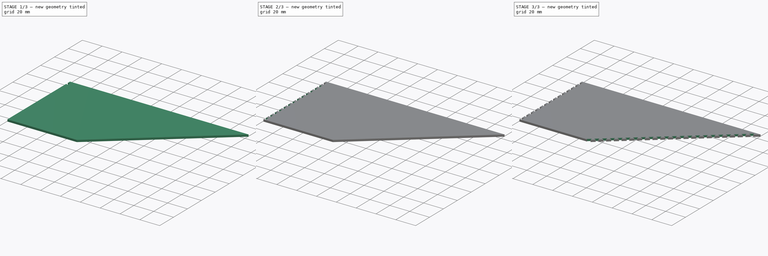
[diagram: build sequence overview — one tinted view per stage of 3, left to right]
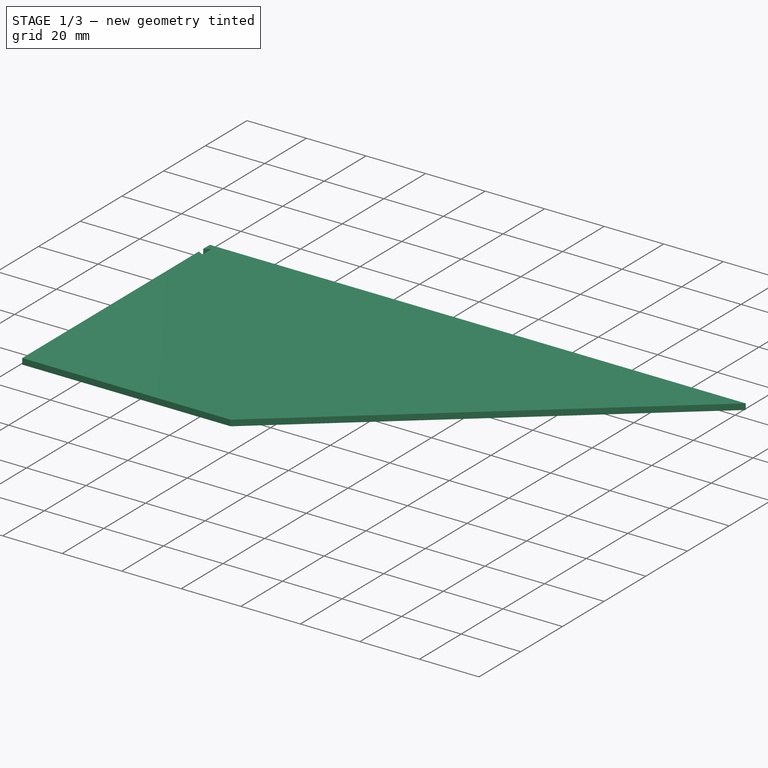
[diagram: stage 1 of 3 — iso view after this stage's code; geometry added in this stage tinted green]
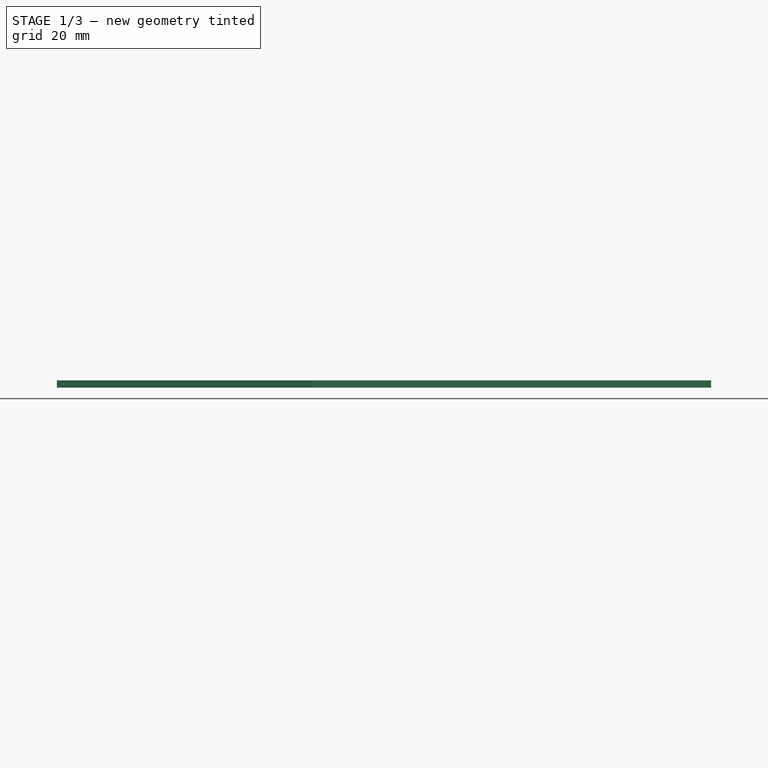
[diagram: stage 1 of 3 — front view after this stage's code; geometry added in this stage tinted green]
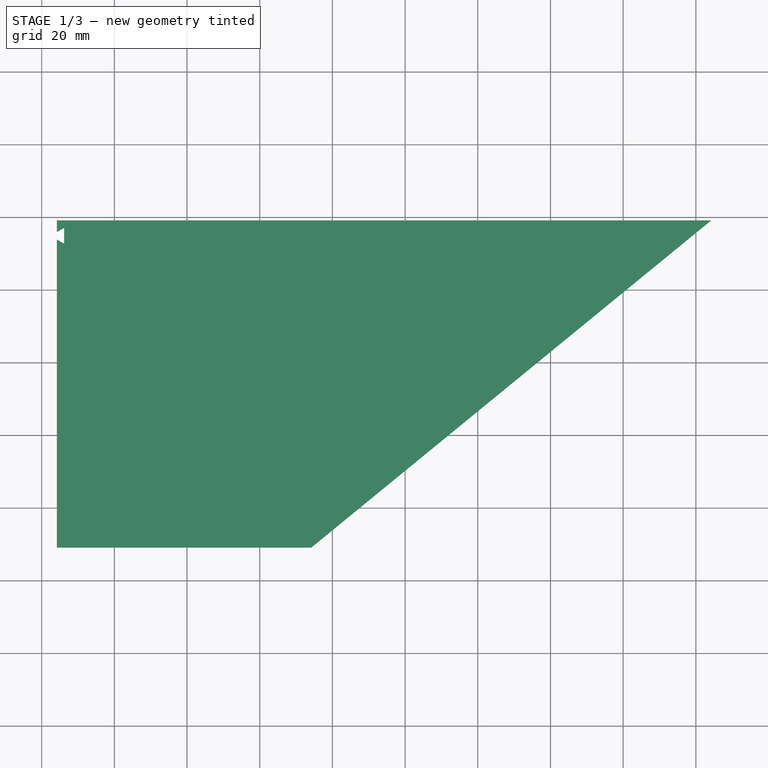
[diagram: stage 1 of 3 — top view after this stage's code; geometry added in this stage tinted green]
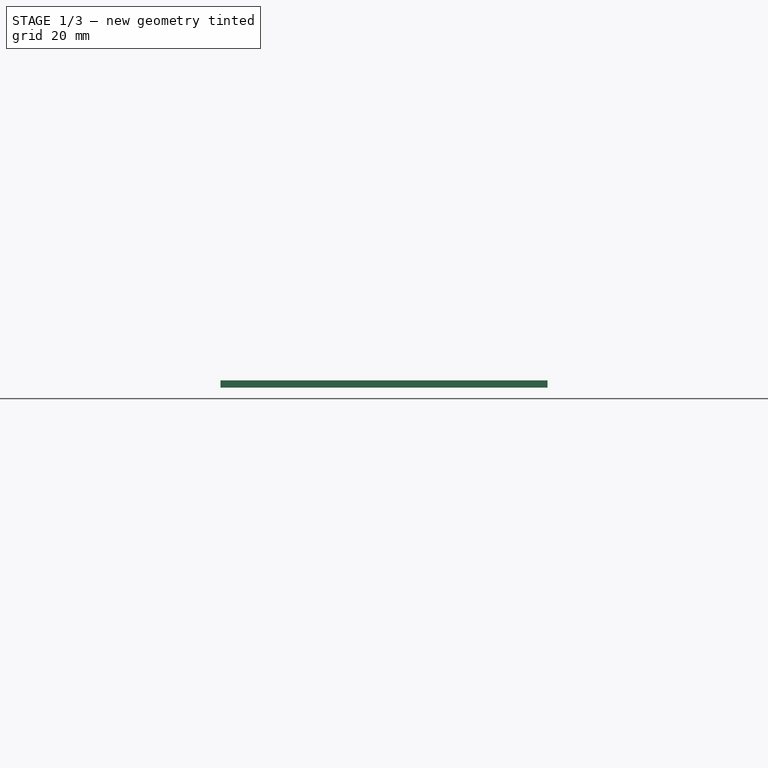
[diagram: stage 1 of 3 — right view after this stage's code; geometry added in this stage tinted green]
FCSTD DOCUMENT  (FreeCAD 0.19R24291 (Git))
Label: bunkerRightSide
License: All rights reserved
LicenseURL: http://en.wikipedia.org/wiki/All_rights_reserved
objects: Sketcher::SketchObject×3, PartDesign::Pocket×2, PartDesign::LinearPattern×2, PartDesign::Pad×1, PartDesign::Body×1
note: 12 computed .brp shape members not serialized (recipe doc carries the construction recipe); baked Part::Feature solids carry a one-line shape summary decoded from their .brp

FEATURE [Sketcher::SketchObject] Sketch
  FullyConstrained = false
  MapMode = 5
  Support = -> [XY_Plane]
  sketch-geometry (4):
    g0: LineSegment StartX=24.195 StartY=29.1082 StartZ=0 EndX=24.195 EndY=119.108 EndZ=0
    g1: LineSegment StartX=24.195 StartY=119.108 StartZ=0 EndX=204.195 EndY=119.108 EndZ=0
    g2: LineSegment StartX=204.195 StartY=119.108 StartZ=0 EndX=94.195 EndY=29.1082 EndZ=0
    g3: LineSegment StartX=94.195 StartY=29.1082 StartZ=0 EndX=24.195 EndY=29.1082 EndZ=0
  constraints (10):
    c: Vertical(g0)
    c: Coincident(g0,g1)
    c: Horizontal(g1)
    c: Coincident(g1,g2)
    c: Coincident(g2,g3)
    c: Coincident(g3,g0)
    c: Horizontal(g3)
    c: Distance(g0) = 90
    c: Distance(g1) = 180
    c: Distance(g3) = 70
FEATURE [PartDesign::Pad] Pad
  Direction = (1,1,1)
  Length = 2
  Length2 = 100
  Profile = -> Sketch
  Type = 0
FEATURE [Sketcher::SketchObject] Sketch001
  ExternalGeometry = -> [Pad]
  FullyConstrained = true
  MapMode = 5
  Placement = pos=(0,0,2) rot=(0,0,1;0rad)
  Support = -> [Pad]
  sketch-geometry (4):
    g0: LineSegment StartX=24.195 StartY=115.954 StartZ=0 EndX=26.195 EndY=117.108 EndZ=0
    g1: LineSegment StartX=26.195 StartY=117.108 StartZ=0 EndX=26.195 EndY=112.699 EndZ=0
    g2: LineSegment StartX=26.195 StartY=112.699 StartZ=0 EndX=24.195 EndY=113.854 EndZ=0
    g3: LineSegment StartX=24.195 StartY=113.854 StartZ=0 EndX=24.195 EndY=115.954 EndZ=0
  constraints (12):
    c: PointOnObject(g0,g-3)
    c: Coincident(g0,g1)
    c: Vertical(g1)
    c: Coincident(g1,g2)
    c: Coincident(g2,g3)
    c: Coincident(g3,g0)
    c: PointOnObject(g2,g-3)
    c: Equal(g2,g0)
    c: Angle(g-3,g2) = 1.0472
    c: Distance(g3) = 2.1
    c: Distance(g2,g1) = 2
    c: DistanceY(g0,g-3) = 2
FEATURE [PartDesign::Pocket] Pocket
  BaseFeature = -> Pad
  Length = 5
  Length2 = 100
  Profile = -> Sketch001
  Type = 0
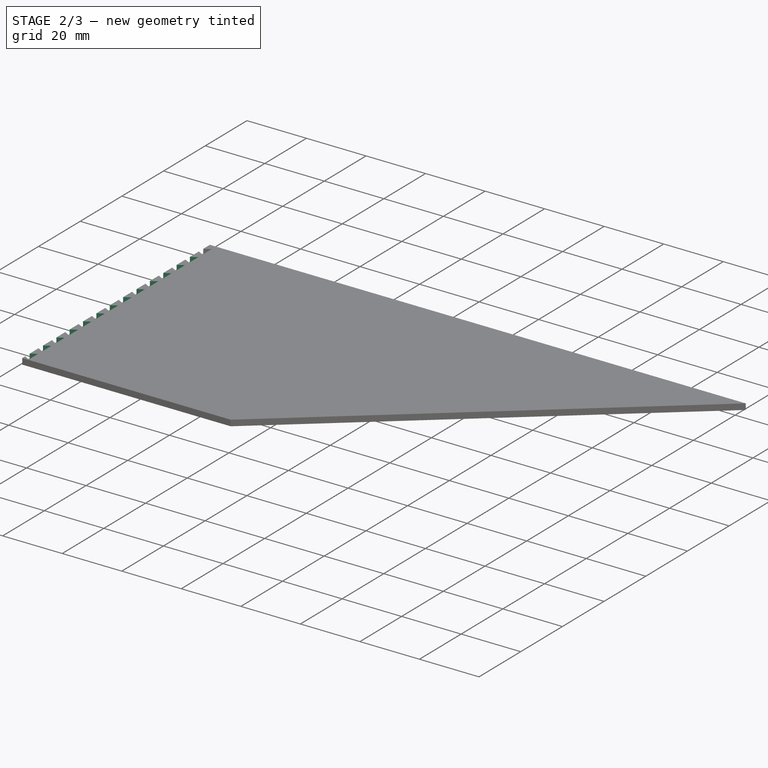
[diagram: stage 2 of 3 — iso view after this stage's code; geometry added in this stage tinted green]
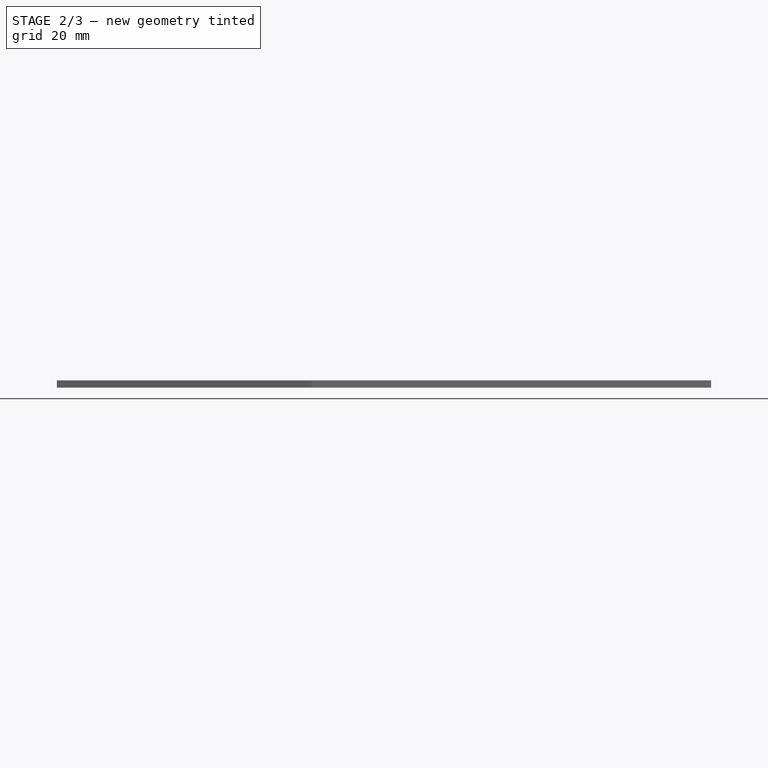
[diagram: stage 2 of 3 — front view after this stage's code; geometry added in this stage tinted green]
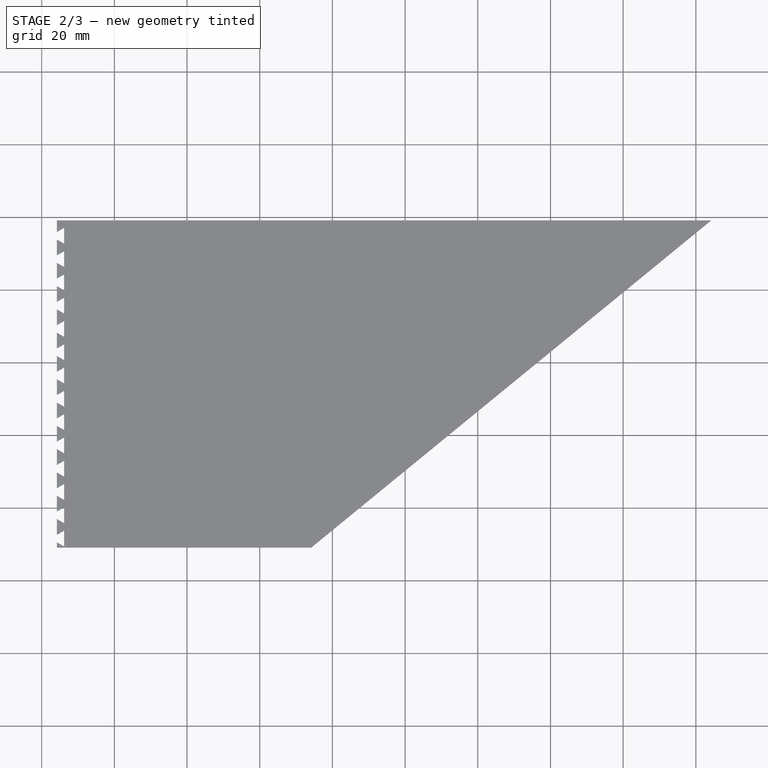
[diagram: stage 2 of 3 — top view after this stage's code; geometry added in this stage tinted green]
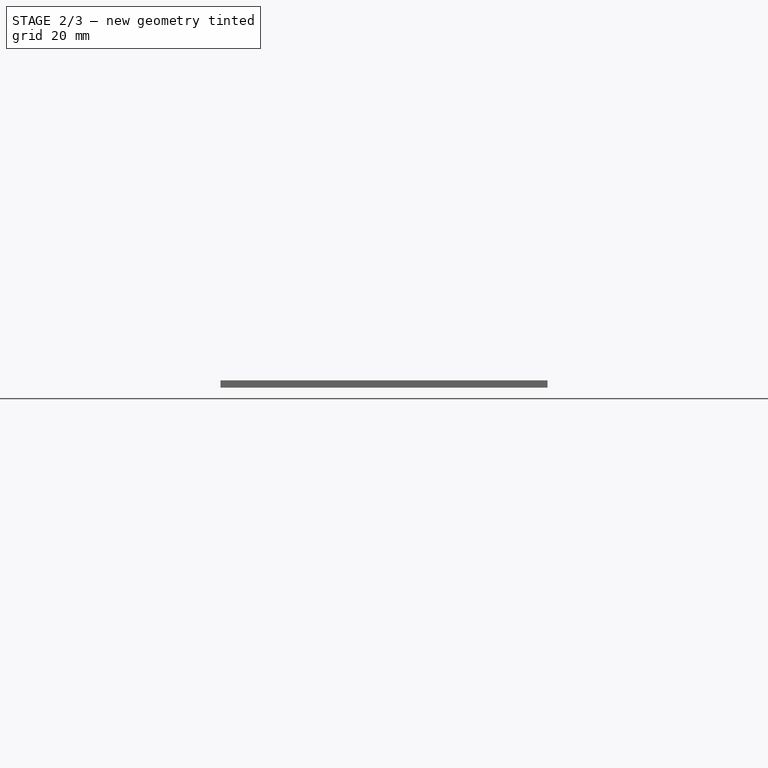
[diagram: stage 2 of 3 — right view after this stage's code; geometry added in this stage tinted green]
FEATURE [PartDesign::LinearPattern] LinearPattern
  BaseFeature = -> Pocket
  Direction = -> Pocket [Edge3]
  Length = 89.7316
  Occurrences = 15
  Originals = -> [Pocket]
  Reversed = true
  expr: Length = <<bunkerLeftSide>>#Spreadsheet.dovetail_length * 14
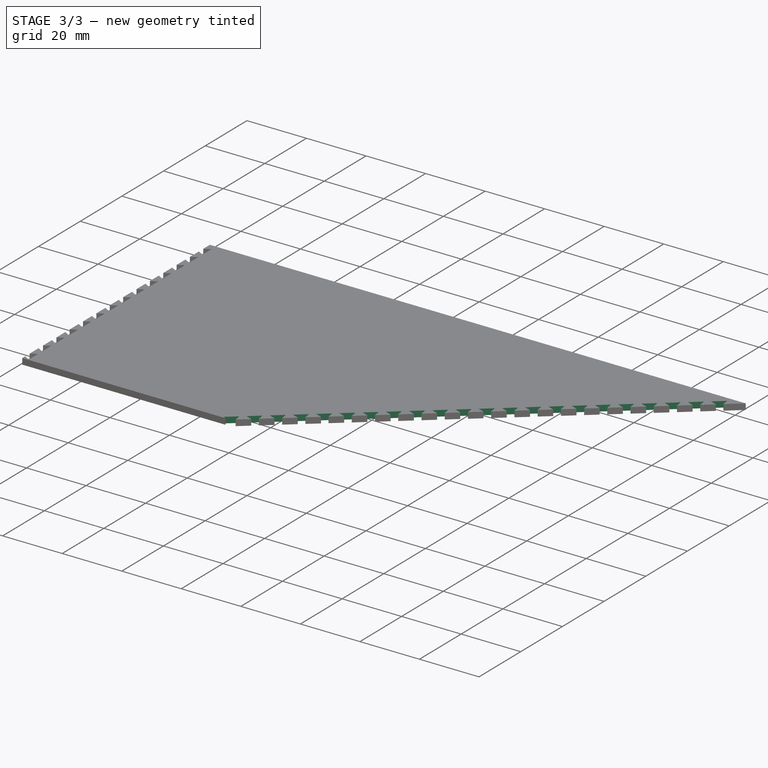
[diagram: stage 3 of 3 — iso view after this stage's code; geometry added in this stage tinted green]
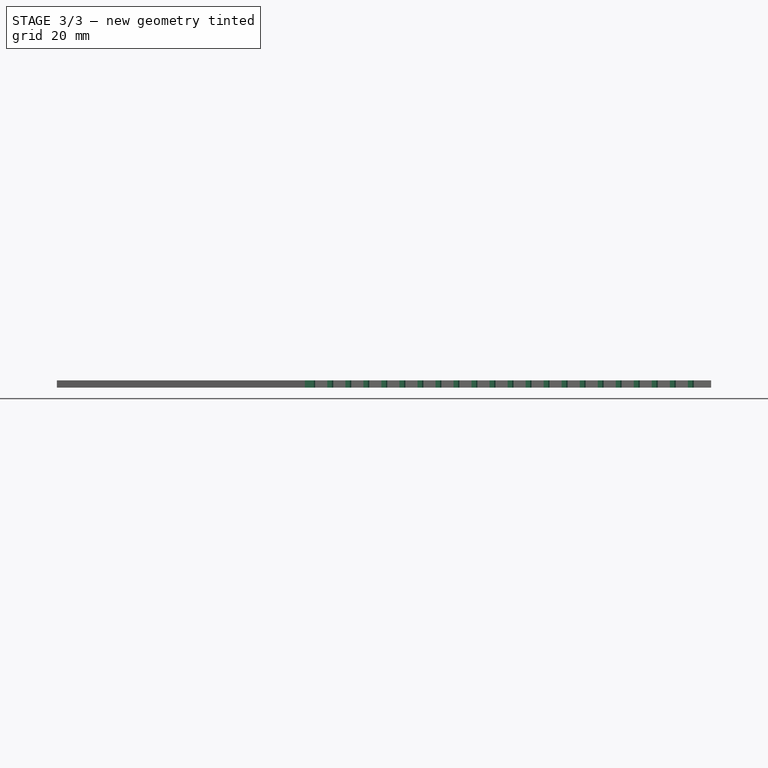
[diagram: stage 3 of 3 — front view after this stage's code; geometry added in this stage tinted green]
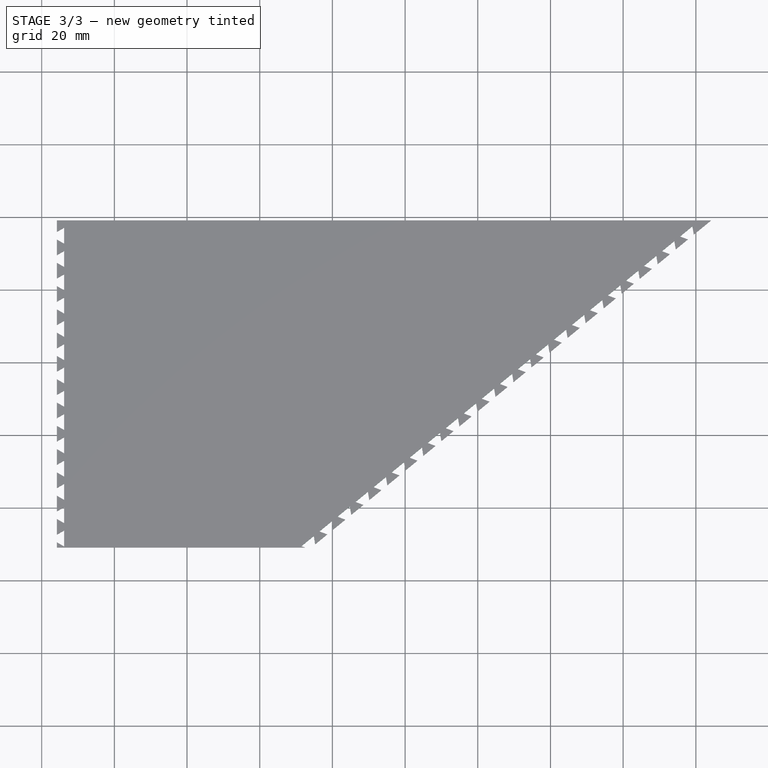
[diagram: stage 3 of 3 — top view after this stage's code; geometry added in this stage tinted green]
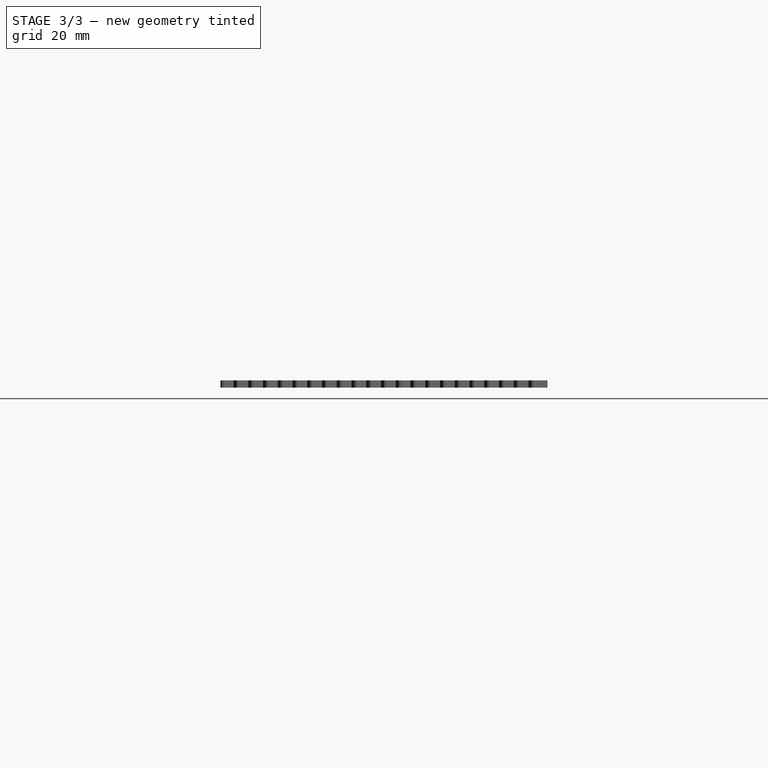
[diagram: stage 3 of 3 — right view after this stage's code; geometry added in this stage tinted green]
FEATURE [Sketcher::SketchObject] Sketch002
  ExternalGeometry = -> [LinearPattern]
  FullyConstrained = false
  MapMode = 5
  Placement = pos=(0,0,2) rot=(0,0,1;0rad)
  Support = -> [LinearPattern]
  sketch-geometry (5):
    g0: LineSegment StartX=199.432 StartY=115.211 StartZ=0 EndX=199.059 EndY=117.49 EndZ=0
    g1: LineSegment StartX=199.059 StartY=117.49 StartZ=0 EndX=195.646 EndY=114.698 EndZ=0
    g2: LineSegment StartX=195.646 StartY=114.698 StartZ=0 EndX=197.806 EndY=113.881 EndZ=0
    g3: LineSegment StartX=197.806 StartY=113.881 StartZ=0 EndX=199.432 EndY=115.211 EndZ=0
    g4: LineSegment StartX=204.195 StartY=119.108 StartZ=0 EndX=201.448 EndY=122.466 EndZ=0
  constraints (14):
    c: PointOnObject(g0,g-3)
    c: Coincident(g0,g1)
    c: Coincident(g1,g2)
    c: PointOnObject(g2,g-3)
    c: Coincident(g2,g3)
    c: Coincident(g3,g0)
    c: Equal(g2,g0)
    c: Parallel(g1,g-3)
    c: Angle(g0,g-3) = 2.0944
    c: Distance(g3) = 2.1
    c: Distance(g2,g1) = 2
    c: Coincident(g4,g-3)
    c: Perpendicular(g-3,g4)
    c: Distance(g0,g4) = 5
FEATURE [PartDesign::Pocket] Pocket001
  BaseFeature = -> LinearPattern
  Length = 5
  Length2 = 100
  Profile = -> Sketch002
  Type = 0
FEATURE [PartDesign::LinearPattern] LinearPattern001
  BaseFeature = -> Pocket001
  Direction = -> Pocket001 [Edge125]
  Length = 134.597
  Occurrences = 22
  Originals = -> [Pocket001]
  expr: Length = <<bunkerLeftSide>>#Spreadsheet.dovetail_length * 21
FEATURE [PartDesign::Body] Body
  Group = -> [Sketch,Pad,Sketch001,Pocket,LinearPattern,Sketch002,Pocket001,LinearPattern001]
  Origin = -> Origin
  Tip = -> LinearPattern001
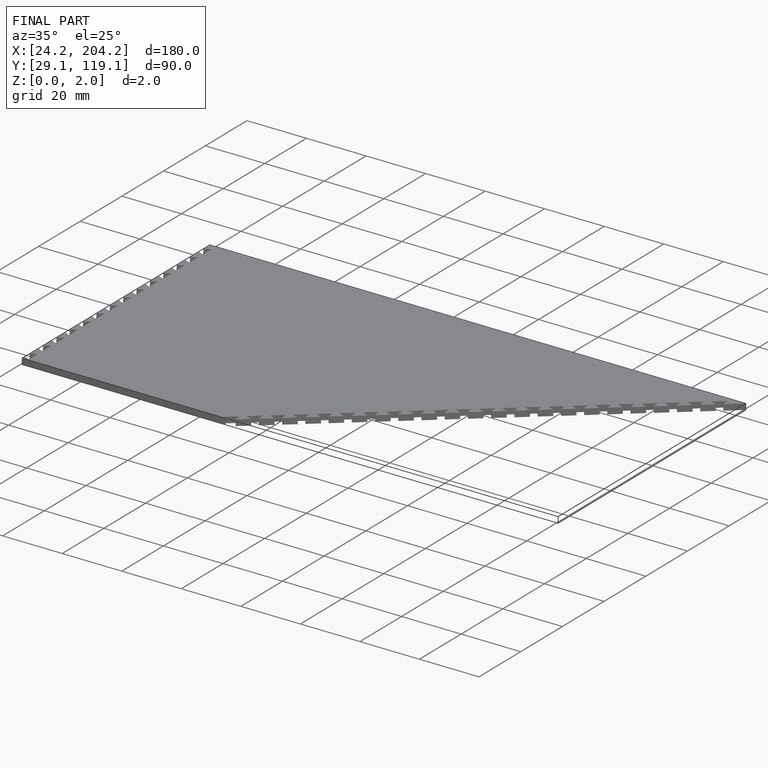
[diagram: finished part — iso view with bounding-box wireframe]
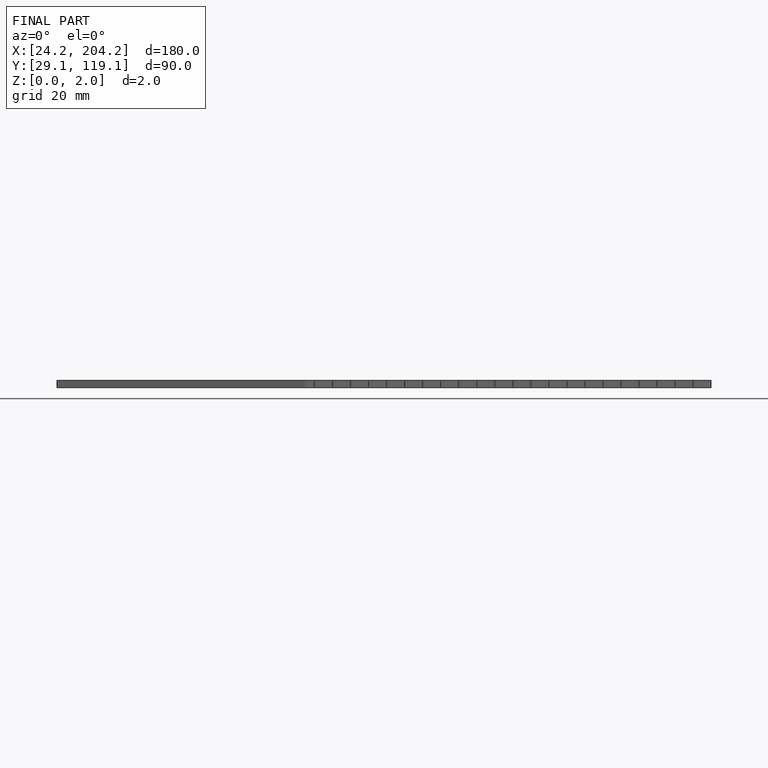
[diagram: finished part — front view with bounding-box wireframe]
